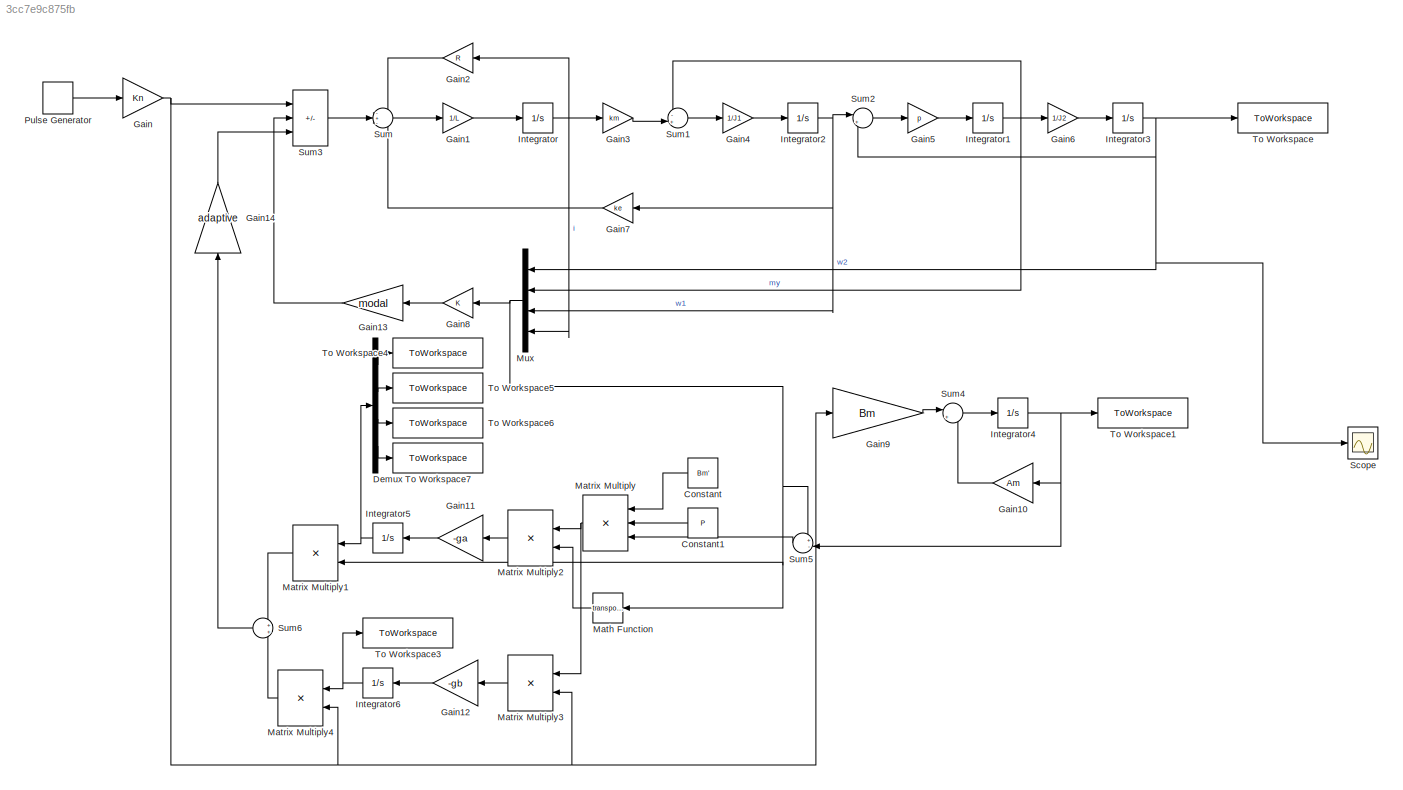
MODEL slx_3cc7e9c875fb
KIND model
CONFIG AbsTol = auto
CONFIG EnableMultiTasking = off
CONFIG FixedStep = auto
CONFIG MaxStep = auto
CONFIG MinStep = auto
CONFIG RelTol = 1e-3
CONFIG SampleTimeConstraint = Unconstrained
CONFIG SolverName = VariableStepAuto
CONFIG StartTime = 0.0
CONFIG StopTime = t
BLOCK [Constant] Constant
  NameLocation = top
  Value = Bm'
  VectorParams1D = off
BLOCK [Constant] Constant1
  NameLocation = top
  Value = P
  VectorParams1D = off
BLOCK [Demux] Demux
  Ports = [1, 4]
BLOCK [Gain] Gain
  Gain = Kn
BLOCK [Gain] Gain1
  Gain = 1/L
BLOCK [Gain] Gain10
  Gain = Am
  Multiplication = Matrix(K*u)
  NameLocation = top
BLOCK [Gain] Gain11
  Gain = -ga
  Multiplication = Matrix(u*K)
  NameLocation = top
BLOCK [Gain] Gain12
  Gain = -gb
  NameLocation = top
BLOCK [Gain] Gain13
  Gain = modal
  NameLocation = top
BLOCK [Gain] Gain14
  Gain = adaptive
  NameLocation = right
BLOCK [Gain] Gain2
  Gain = R
  NameLocation = top
BLOCK [Gain] Gain3
  Gain = km
BLOCK [Gain] Gain4
  Gain = 1/J1
BLOCK [Gain] Gain5
  Gain = p
BLOCK [Gain] Gain6
  Gain = 1/J2
BLOCK [Gain] Gain7
  Gain = ke
  NameLocation = top
BLOCK [Gain] Gain8
  Gain = K
  Multiplication = Matrix(K*u)
  NameLocation = top
BLOCK [Gain] Gain9
  Gain = Bm
  Multiplication = Matrix(K*u)
BLOCK [Integrator] Integrator
  Ports = [1, 1]
BLOCK [Integrator] Integrator1
  Ports = [1, 1]
BLOCK [Integrator] Integrator2
  Ports = [1, 1]
BLOCK [Integrator] Integrator3
  Ports = [1, 1]
BLOCK [Integrator] Integrator4
  Ports = [1, 1]
BLOCK [Integrator] Integrator5
  NameLocation = top
  Ports = [1, 1]
BLOCK [Integrator] Integrator6
  NameLocation = top
  Ports = [1, 1]
BLOCK [Math] Math Function
  NameLocation = top
  Operator = transpose
  Ports = [1, 1]
BLOCK [Product] Matrix Multiply
  Inputs = 3
  Multiplication = Matrix(*)
  NameLocation = top
  Ports = [3, 1]
BLOCK [Product] Matrix Multiply1
  Multiplication = Matrix(*)
  NameLocation = top
  Ports = [2, 1]
BLOCK [Product] Matrix Multiply2
  Multiplication = Matrix(*)
  NameLocation = top
  Ports = [2, 1]
BLOCK [Product] Matrix Multiply3
  Multiplication = Matrix(*)
  NameLocation = top
  Ports = [2, 1]
BLOCK [Product] Matrix Multiply4
  NameLocation = top
  Ports = [2, 1]
BLOCK [Mux] Mux
  DisplayOption = bar
  NameLocation = top
  Ports = [4, 1]
BLOCK [DiscretePulseGenerator] Pulse Generator
  Period = pulse_period
  Ports = [0, 1]
  PulseType = Time based
  PulseWidth = 50
BLOCK [Scope] Scope
  Floating = off
  NumInputPorts = 1
  Ports = [1]
  ScopeSpecificationString = Simulink.scopes.TimeScopeBlockCfg('CurrentConfiguration', extmgr.ConfigurationSet(extmgr.Configuration('Core','General UI',true),extmgr.Configuration('Core','Source UI',true),extmgr.Configuration('Sources','WiredSimulink',true),extmgr.Configuration('Visuals','Time Domain',true,'SerializedDisplays',{struct('MinYLimReal','-0.30587','MaxYLimReal','1.15067','YLabelReal','','MinYLimMag','0.00000','MaxY...<+1374ch>
BLOCK [Sum] Sum
  Inputs = -+-
  Ports = [3, 1]
BLOCK [Sum] Sum1
  Inputs = -+|
  NameLocation = top
  Ports = [2, 1]
BLOCK [Sum] Sum2
  Inputs = |+-
  NameLocation = top
  Ports = [2, 1]
BLOCK [Sum] Sum3
  IconShape = rectangular
  Inputs = +-+
  Ports = [3, 1]
BLOCK [Sum] Sum4
  Inputs = |++
  NameLocation = top
  Ports = [2, 1]
BLOCK [Sum] Sum5
  Inputs = +-|
  NameLocation = top
  Ports = [2, 1]
BLOCK [Sum] Sum6
  NameLocation = top
  Ports = [2, 1]
BLOCK [ToWorkspace] To Workspace
  FixptAsFi = on
  MaxDataPoints = inf
  Ports = [1]
  SampleTime = -1
  SaveFormat = Timeseries
  VariableName = system
BLOCK [ToWorkspace] To Workspace1
  FixptAsFi = on
  MaxDataPoints = inf
  Ports = [1]
  SampleTime = -1
  SaveFormat = Timeseries
  VariableName = model
BLOCK [ToWorkspace] To Workspace3
  FixptAsFi = on
  MaxDataPoints = inf
  Ports = [1]
  SampleTime = -1
  SaveFormat = Timeseries
  VariableName = gb
BLOCK [ToWorkspace] To Workspace4
  FixptAsFi = on
  MaxDataPoints = inf
  Ports = [1]
  SampleTime = -1
  SaveFormat = Timeseries
  VariableName = ga1
BLOCK [ToWorkspace] To Workspace5
  FixptAsFi = on
  MaxDataPoints = inf
  Ports = [1]
  SampleTime = -1
  SaveFormat = Timeseries
  VariableName = ga2
BLOCK [ToWorkspace] To Workspace6
  FixptAsFi = on
  MaxDataPoints = inf
  Ports = [1]
  SampleTime = -1
  SaveFormat = Timeseries
  VariableName = ga3
BLOCK [ToWorkspace] To Workspace7
  FixptAsFi = on
  MaxDataPoints = inf
  Ports = [1]
  SampleTime = -1
  SaveFormat = Timeseries
  VariableName = ga4
LINE Constant1:1 -> Matrix Multiply:2
LINE Constant:1 -> Matrix Multiply:1
LINE Demux:1 -> To Workspace4:1
LINE Demux:2 -> To Workspace5:1
LINE Demux:3 -> To Workspace6:1
LINE Demux:4 -> To Workspace7:1
LINE Gain10:1 -> Sum4:2
LINE Gain11:1 -> Integrator5:1
LINE Gain12:1 -> Integrator6:1
LINE Gain13:1 -> Sum3:2
LINE Gain14:1 -> Sum3:3
LINE Gain1:1 -> Integrator:1
LINE Gain2:1 -> Sum:1
LINE Gain3:1 -> Sum1:2
LINE Gain4:1 -> Integrator2:1
LINE Gain5:1 -> Integrator1:1
LINE Gain6:1 -> Integrator3:1
LINE Gain7:1 -> Sum:3
LINE Gain8:1 -> Gain13:1
LINE Gain9:1 -> Sum4:1
NET Gain:1 -> Gain9:1, Matrix Multiply3:2, Matrix Multiply4:2, Sum3:1
NET Integrator1:1 -> Gain6:1, Mux:2, Sum1:1
NET Integrator2:1 -> Gain7:1, Mux:3, Sum2:1
NET Integrator3:1 -> Mux:1, Scope:1, Sum2:2, To Workspace:1
NET Integrator4:1 -> Gain10:1, Sum5:2, To Workspace1:1
NET Integrator5:1 -> Demux:1, Matrix Multiply1:1
NET Integrator6:1 -> Matrix Multiply4:1, To Workspace3:1
NET Integrator:1 -> Gain2:1, Gain3:1, Mux:4
LINE Math Function:1 -> Matrix Multiply2:2
LINE Matrix Multiply1:1 -> Sum6:1
LINE Matrix Multiply2:1 -> Gain11:1
LINE Matrix Multiply3:1 -> Gain12:1
LINE Matrix Multiply4:1 -> Sum6:2
NET Matrix Multiply:1 -> Matrix Multiply2:1, Matrix Multiply3:1
NET Mux:1 -> Gain8:1, Math Function:1, Matrix Multiply1:2, Sum5:1
LINE Pulse Generator:1 -> Gain:1
LINE Sum1:1 -> Gain4:1
LINE Sum2:1 -> Gain5:1
LINE Sum3:1 -> Sum:2
LINE Sum4:1 -> Integrator4:1
LINE Sum5:1 -> Matrix Multiply:3
LINE Sum6:1 -> Gain14:1
LINE Sum:1 -> Gain1:1
note: NET lines group one-source signal fan-out (src -> all destinations, sorted); 1:1 wires keep LINE
